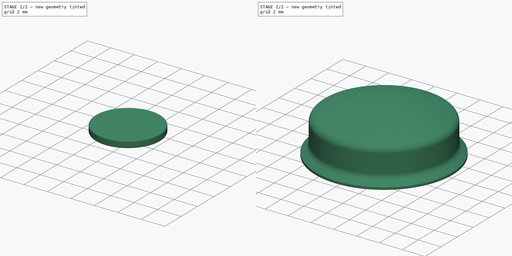
[diagram: build sequence overview — one tinted view per stage of 2, left to right]
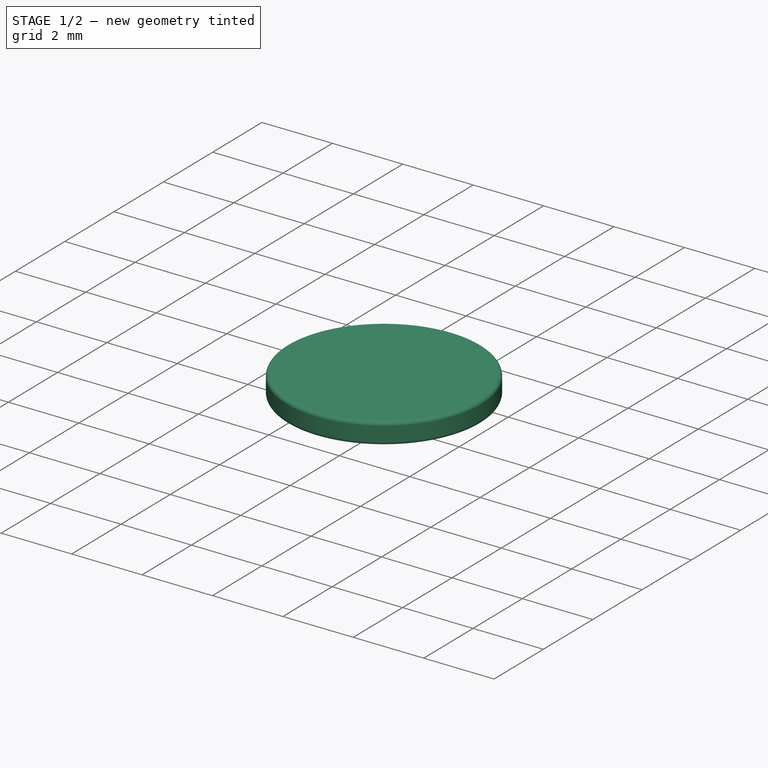
[diagram: stage 1 of 2 — iso view after this stage's code; geometry added in this stage tinted green]
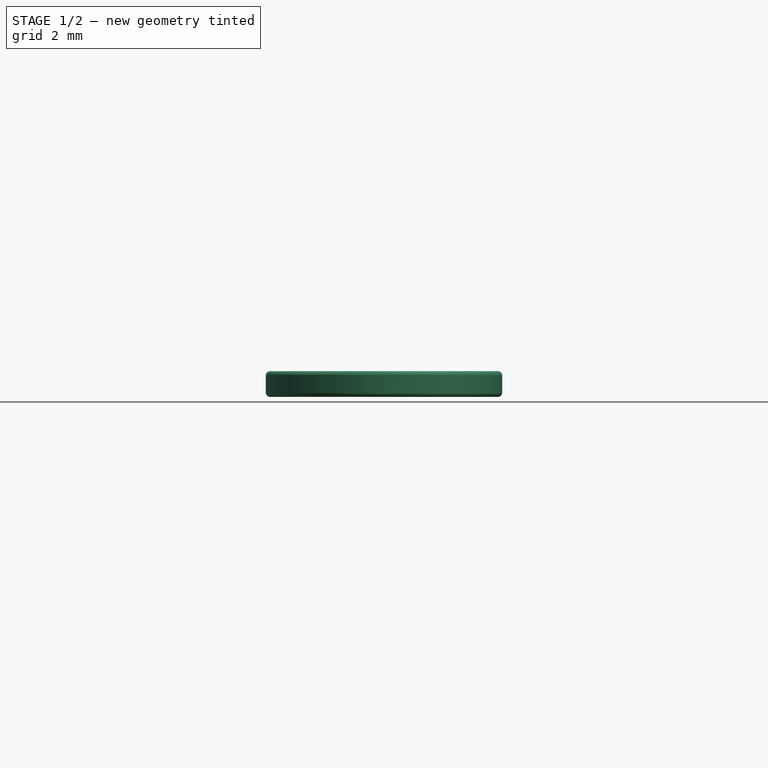
[diagram: stage 1 of 2 — front view after this stage's code; geometry added in this stage tinted green]
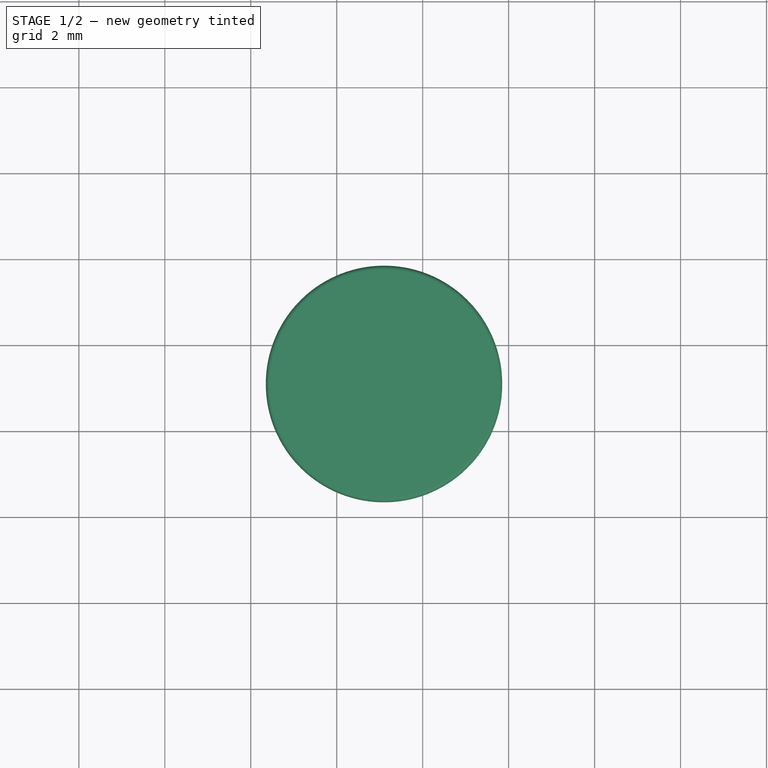
[diagram: stage 1 of 2 — top view after this stage's code; geometry added in this stage tinted green]
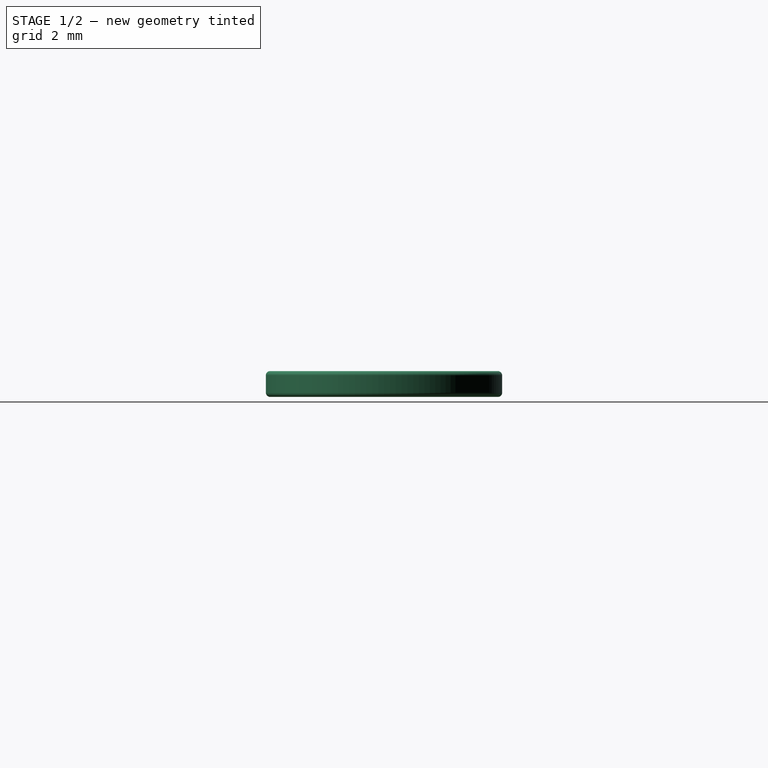
[diagram: stage 1 of 2 — right view after this stage's code; geometry added in this stage tinted green]
FCSTD DOCUMENT  (FreeCAD 0.20R29410 (Git))
Label: giggling-eye
Comment: FreeCAD-models by mgesteiro -- https://github.com/mgesteiro/FreeCAD-models
License: Creative Commons Attribution-ShareAlike
LicenseURL: http://creativecommons.org/licenses/by-sa/4.0/
objects: Sketcher::SketchObject×3, PartDesign::Body×3, PartDesign::Pad×2, PartDesign::Revolution×1, PartDesign::Fillet×1, App::Part×1, Spreadsheet::Sheet×1
note: 14 computed .brp shape members not serialized (recipe doc carries the construction recipe); baked Part::Feature solids carry a one-line shape summary decoded from their .brp

FEATURE [PartDesign::Body] Body002  label="Body-base"
  Group = -> [Sketch009,Pad005]
  Origin = -> Origin004
  Tip = -> Pad005
FEATURE [Sketcher::SketchObject] Sketch010  label="Sketch-pupil"
  FullyConstrained = true
  MapMode = 5
  Support = -> [XY_Plane005]
  expr: Constraints[0] = <<Configs>>.pupile_d
  expr: Constraints[1] = <<Configs>>.pupile_d * 0.2
  expr: Constraints[2] = <<Configs>>.pupile_d * 0.2
  sketch-geometry (1):
    g0: Circle CenterX=1.1 CenterY=1.1 CenterZ=0 NormalX=0 NormalY=0 NormalZ=1 AngleXU=0 Radius=2.75
  constraints (3):
    c: Diameter(g0) = 5.5
    c: DistanceY(g-1,g0) = 1.1
    c: DistanceX(g-1,g0) = 1.1
FEATURE [PartDesign::Pad] Pad006  label="Pad-pupil"
  Direction = (0,0,1)
  Length = 0.6
  Length2 = 100
  Profile = -> Sketch010
  Type = 0
FEATURE [PartDesign::Fillet] Fillet
  Base = -> Pad006 [Edge2,Edge3]
  BaseFeature = -> Pad006
  Radius = 0.1
  SupportTransform = false
  UseAllEdges = false
FEATURE [PartDesign::Body] Body003  label="Body-pupil"
  Group = -> [Sketch010,Pad006,Fillet]
  Origin = -> Origin005
  Tip = -> Fillet
FEATURE [App::Part] Part001  label="Part-giggling-eye"
  Group = -> [Body001,Body002,Body003]
  Origin = -> Origin003
FEATURE [Spreadsheet::Sheet] Spreadsheet  label="Configs"
  cells = B1=eye-diameter; C1=height; D1=pupile-diameter; A2=eye-18mm; B2==18mm; C2==5.2mm; D2==10mm; A3=eye-15mm; B3==15.2mm; C3==4.2mm; D3==9mm; A4=eye-10mm; B4==12mm; C4==4mm; D4==5.5mm; A5=eye-10mm; B5==10.2mm; C5==3.4mm; D5==5.6mm; A6=eye-8mm; B6==8.199999999999999mm; C6==3.4mm; D6==4.8mm; A7=eye-6mm; B7==6.2mm; C7==2.9mm; D7==3.4mm; B9(eye_d)==12mm; C9(eye_h)==4mm; D9(pupile_d)==5.5mm
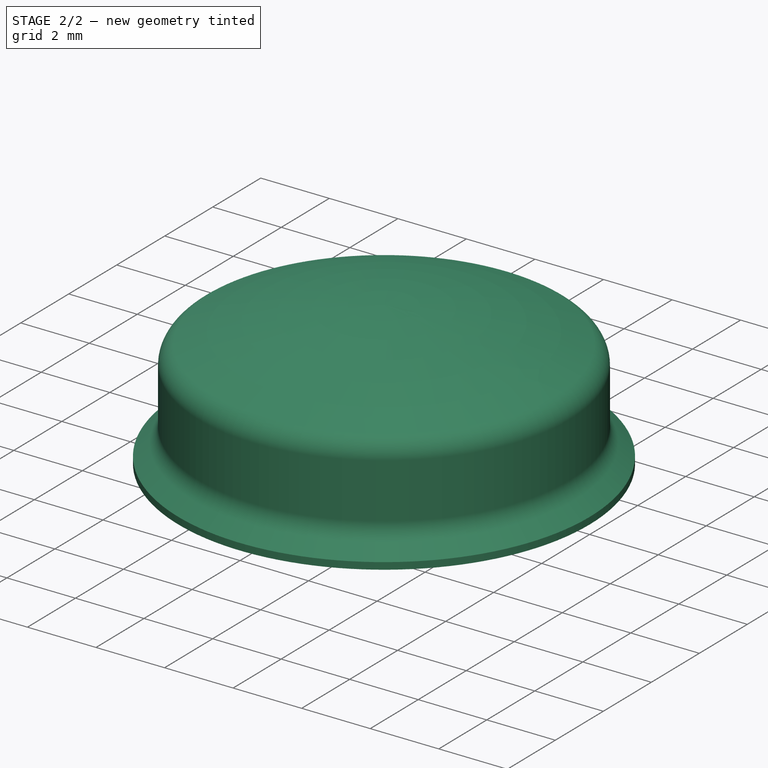
[diagram: stage 2 of 2 — iso view after this stage's code; geometry added in this stage tinted green]
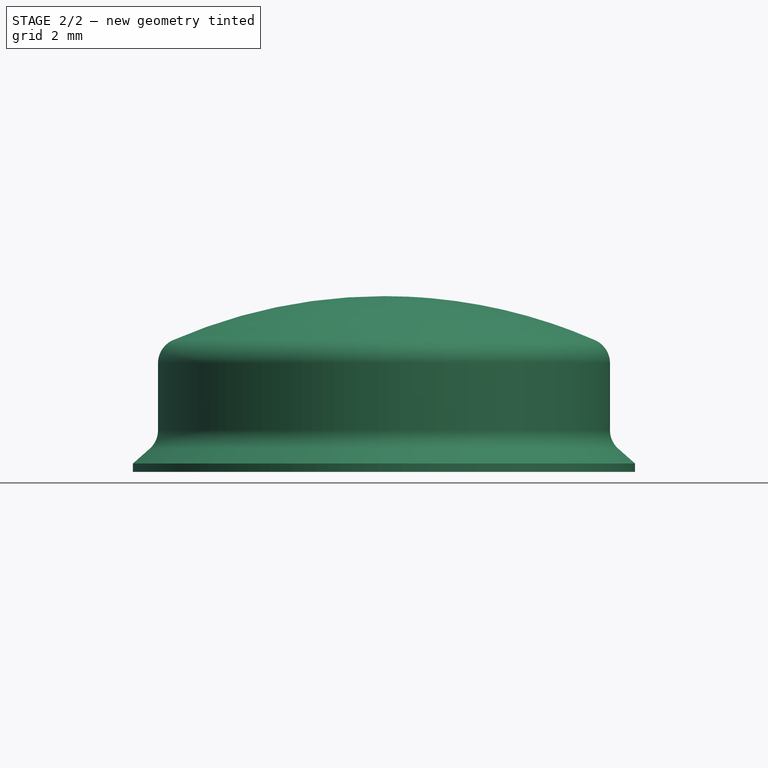
[diagram: stage 2 of 2 — front view after this stage's code; geometry added in this stage tinted green]
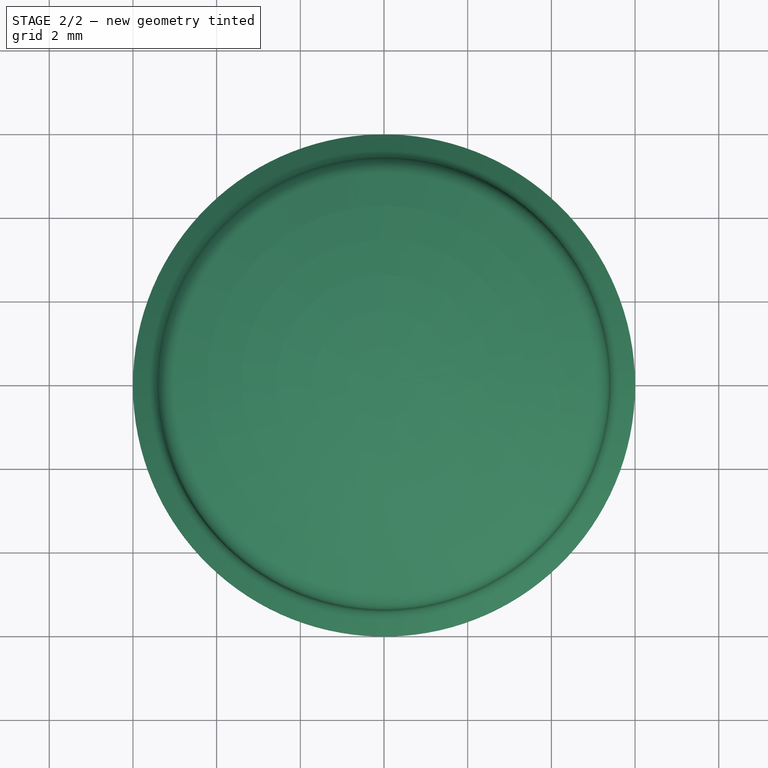
[diagram: stage 2 of 2 — top view after this stage's code; geometry added in this stage tinted green]
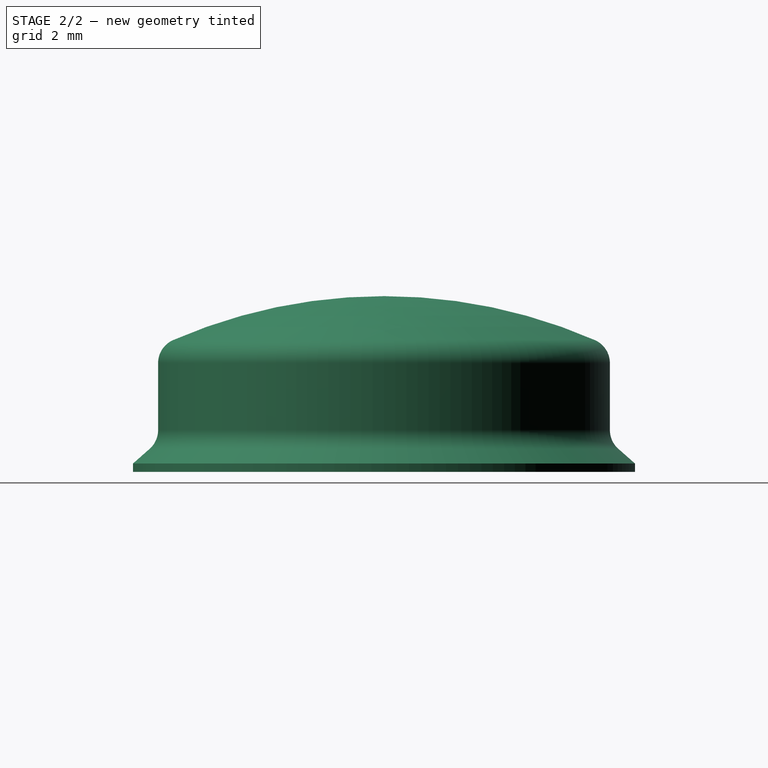
[diagram: stage 2 of 2 — right view after this stage's code; geometry added in this stage tinted green]
FEATURE [Sketcher::SketchObject] Sketch008  label="Sketch-clear-cover"
  FullyConstrained = true
  MapMode = 5
  Placement = pos=(0,0,0) rot=(1,0,0;1.5708rad)
  Support = -> [XZ_Plane]
  expr: Constraints[12] = 0.6mm
  expr: Constraints[15] = <<Configs>>.eye_h * 0.2
  expr: Constraints[17] = <<Configs>>.eye_h * 0.4
  expr: Constraints[7] = <<Configs>>.eye_d / 2
  expr: Constraints[8] = <<Configs>>.eye_h
  sketch-geometry (7):
    g0: LineSegment StartX=6 StartY=0 StartZ=0 EndX=0 EndY=0 EndZ=0
    g1: LineSegment StartX=0 StartY=0 StartZ=0 EndX=0 EndY=4 EndZ=0
    g2: ArcOfCircle CenterX=-8e-16 CenterY=-8.62 CenterZ=0 NormalX=0 NormalY=0 NormalZ=1 AngleXU=0 Radius=12.62 StartAngle=1.16001 EndAngle=1.5708
    g3: ArcOfCircle CenterX=4.8 CenterY=2.4 CenterZ=0 NormalX=0 NormalY=0 NormalZ=1 AngleXU=0 Radius=0.6 StartAngle=0 EndAngle=1.16001
    g4: LineSegment StartX=5.60314 StartY=0.35 StartZ=0 EndX=6 EndY=0 EndZ=0
    g5: LineSegment StartX=5.4 StartY=2.4 StartZ=0 EndX=5.4 EndY=0.8 EndZ=0
    g6: ArcOfCircle CenterX=6 CenterY=0.8 CenterZ=0 NormalX=0 NormalY=0 NormalZ=1 AngleXU=0 Radius=0.6 StartAngle=3.14159 EndAngle=3.98965
  constraints (18):
    c: PointOnObject(g0,g-1)
    c: Coincident(g0,g-1)
    c: Coincident(g0,g1)
    c: Vertical(g1)
    c: Perpendicular(g1,g2) = 1.5708
    c: Tangent(g2,g3) = -1.5708
    c: Coincident(g4,g0)
    c: DistanceX(g0) = 6
    c: DistanceY(g1) = 4
    c: Tangent(g3,g5) = 1.5708
    c: Tangent(g5,g6) = -1.5708
    c: Tangent(g6,g4) = -1.5708
    c: Radius(g6) = 0.6
    c: Vertical(g5)
    c: Vertical(g6,g0)
    c: DistanceY(g6) = 0.8
    c: Equal(g6,g3)
    c: DistanceY(g6,g3) = 1.6
FEATURE [PartDesign::Revolution] Revolution  label="Revolution-cover"
  Angle = 360
  Axis = (0,-2e-16,1)
  Base = (0,0,0)
  Placement = pos=(0,0,0) rot=(1,0,0;1.5708rad)
  Profile = -> Sketch008
  ReferenceAxis = -> Sketch008 [V_Axis]
  Reversed = true
FEATURE [PartDesign::Body] Body001  label="Body-clear-cover"
  Group = -> [Sketch008,Revolution]
  Origin = -> Origin
  Tip = -> Revolution
FEATURE [Sketcher::SketchObject] Sketch009  label="Sketch-eye-base"
  FullyConstrained = true
  MapMode = 5
  Support = -> [XY_Plane004]
  expr: Constraints[1] = <<Configs>>.eye_d
  sketch-geometry (1):
    g0: Circle CenterX=0 CenterY=0 CenterZ=0 NormalX=0 NormalY=0 NormalZ=1 AngleXU=0 Radius=6
  constraints (2):
    c: Coincident(g0,g-1)
    c: Diameter(g0) = 12
FEATURE [PartDesign::Pad] Pad005  label="Pad-eye-base"
  Direction = (0,0,1)
  Length = 0.2
  Length2 = 100
  Profile = -> Sketch009
  Reversed = true
  Type = 0
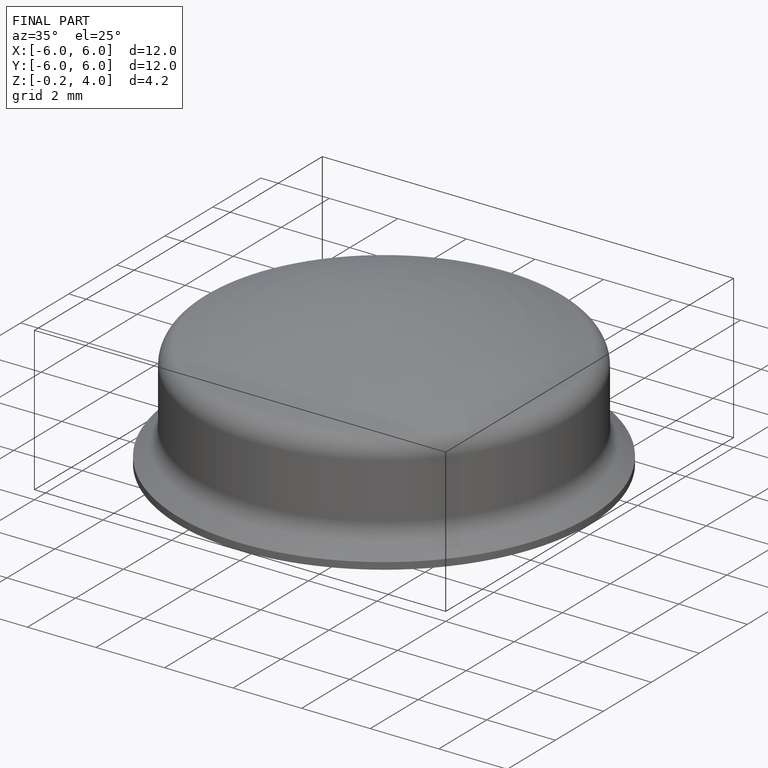
[diagram: finished part — iso view with bounding-box wireframe]
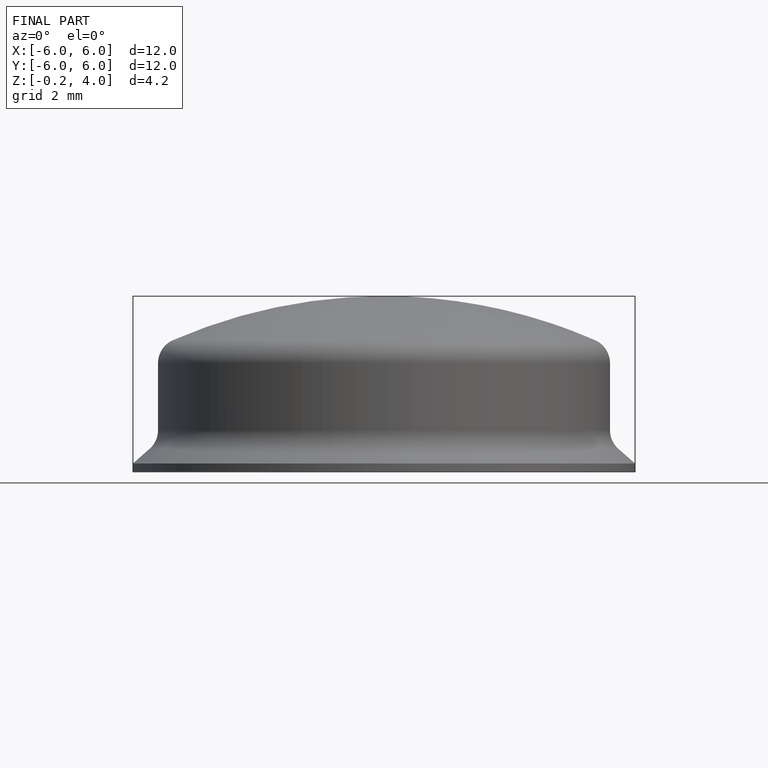
[diagram: finished part — front view with bounding-box wireframe]
